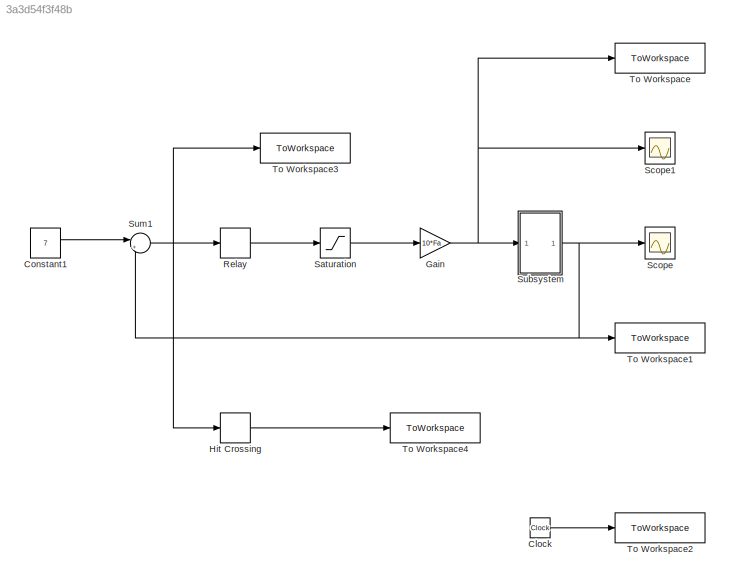
MODEL slx_3a3d54f3f48b
KIND model
CONFIG AbsTol = auto
CONFIG EnableMultiTasking = off
CONFIG FixedStep = 0.01
CONFIG MaxStep = auto
CONFIG MinStep = auto
CONFIG RelTol = 1e-3
CONFIG SampleTimeConstraint = Unconstrained
CONFIG Solver = ode4
CONFIG SolverName = ode4
CONFIG StartTime = 0.0
CONFIG StopTime = 10.0
BLOCK [Clock] Clock
BLOCK [Constant] Constant1
  Value = 7
BLOCK [Gain] Gain
  Gain = 10*Fa
BLOCK [HitCross] Hit Crossing
  HitCrossingDirection = rising
  Ports = [1, 1]
BLOCK [Relay] Relay
  OffSwitchValue = -eps
  OnOutputValue = M
BLOCK [Saturate] Saturation
  LowerLimit = 0
  UpperLimit = 1
BLOCK [Scope] Scope
  Floating = off
  NumInputPorts = 1
  Ports = [1]
  ScopeSpecificationString = Simulink.scopes.TimeScopeBlockCfg('CurrentConfiguration', extmgr.ConfigurationSet(extmgr.Configuration('Core','General UI',true),extmgr.Configuration('Core','Source UI',true),extmgr.Configuration('Sources','WiredSimulink',true),extmgr.Configuration('Visuals','Time Domain',true,'SerializedDisplays',{struct('MinYLimReal','6.999988','MaxYLimReal','7.000000','YLabelReal','','MinYLimMag','6.999988','Ma...<+1391ch>
BLOCK [Scope] Scope1
  Floating = off
  NumInputPorts = 1
  Ports = [1]
  ScopeSpecificationString = Simulink.scopes.TimeScopeBlockCfg('CurrentConfiguration', extmgr.ConfigurationSet(extmgr.Configuration('Core','General UI',true),extmgr.Configuration('Core','Source UI',true),extmgr.Configuration('Sources','WiredSimulink',true,'DataLoggingVariableName','ScopeData1'),extmgr.Configuration('Visuals','Time Domain',true,'SerializedDisplays',{struct('MinYLimReal','-0.00295','MaxYLimReal','0.1653','YLabe...<+1378ch>
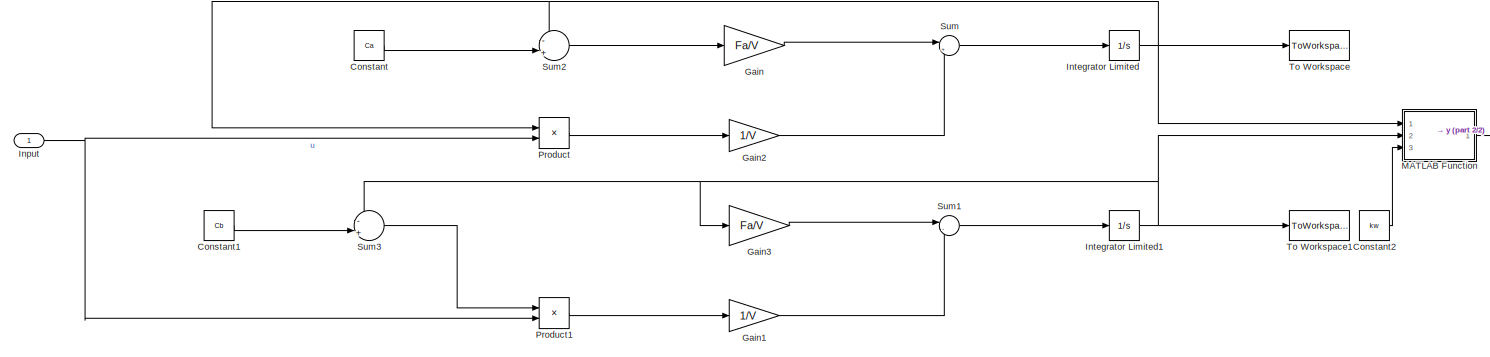
[diagram: Subsystem - part 1/2, most of the canvas]
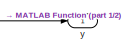
[diagram: Subsystem - part 2/2, middle right region]
BLOCK [SubSystem] Subsystem
  Ports = [1, 1]
  RequestExecContextInheritance = off
BLOCK [Constant] Subsystem/Constant
  Value = Ca
BLOCK [Constant] Subsystem/Constant1
  Value = Cb
BLOCK [Constant] Subsystem/Constant2
  Value = kw
BLOCK [Gain] Subsystem/Gain
  Gain = Fa/V
BLOCK [Gain] Subsystem/Gain1
  Gain = 1/V
BLOCK [Gain] Subsystem/Gain2
  Gain = 1/V
BLOCK [Gain] Subsystem/Gain3
  Gain = Fa/V
BLOCK [Inport] Subsystem/Input
  IconDisplay = Signal name
BLOCK [Integrator] Subsystem/Integrator Limited
  LimitOutput = on
  LowerSaturationLimit = 0
  Ports = [1, 1]
  UpperSaturationLimit = Ca
BLOCK [Integrator] Subsystem/Integrator Limited1
  LimitOutput = on
  LowerSaturationLimit = 0
  Ports = [1, 1]
  UpperSaturationLimit = Cb
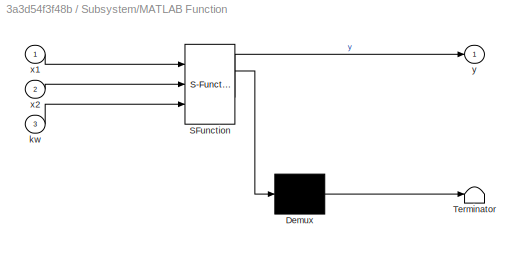
BLOCK [SubSystem] Subsystem/MATLAB Function
  ErrorFcn = Stateflow.Translate.translate
  PermitHierarchicalResolution = ExplicitOnly
  Ports = [3, 1]
  RequestExecContextInheritance = off
  SFBlockType = MATLAB Function
  TreatAsAtomicUnit = on
BLOCK [Demux] Subsystem/MATLAB Function/ Demux 
  Outputs = 1
  Ports = [1, 1]
BLOCK [S-Function] Subsystem/MATLAB Function/ SFunction 
  EnableBusSupport = on
  FunctionName = sf_sfun
  PortCounts = [3 2]
  Ports = [3, 2]
  SFcnIsStateOwnerBlock = off
  SFunctionDeploymentMode = off
  Tag = Stateflow S-Function relejni_eksperiment 2
BLOCK [Terminator] Subsystem/MATLAB Function/ Terminator 
BLOCK [Inport] Subsystem/MATLAB Function/kw
  Port = 3
BLOCK [Inport] Subsystem/MATLAB Function/x1
BLOCK [Inport] Subsystem/MATLAB Function/x2
  Port = 2
BLOCK [Outport] Subsystem/MATLAB Function/y
BLOCK [Product] Subsystem/Product
  Ports = [2, 1]
BLOCK [Product] Subsystem/Product1
  Ports = [2, 1]
BLOCK [Sum] Subsystem/Sum
  Inputs = |+-
  Ports = [2, 1]
BLOCK [Sum] Subsystem/Sum1
  Inputs = |-+
  Ports = [2, 1]
BLOCK [Sum] Subsystem/Sum2
  Inputs = -|+||
  Ports = [2, 1]
BLOCK [Sum] Subsystem/Sum3
  Inputs = -|+||
  Ports = [2, 1]
BLOCK [ToWorkspace] Subsystem/To Workspace
  FixptAsFi = on
  MaxDataPoints = inf
  Ports = [1]
  SampleTime = -1
  VariableName = x1
BLOCK [ToWorkspace] Subsystem/To Workspace1
  FixptAsFi = on
  MaxDataPoints = inf
  Ports = [1]
  SampleTime = -1
  VariableName = x2
BLOCK [Outport] Subsystem/y
BLOCK [Sum] Sum1
  Inputs = |+-
  Ports = [2, 1]
BLOCK [ToWorkspace] To Workspace
  FixptAsFi = on
  MaxDataPoints = inf
  Ports = [1]
  SampleTime = -1
  VariableName = u
BLOCK [ToWorkspace] To Workspace1
  FixptAsFi = on
  MaxDataPoints = inf
  Ports = [1]
  SampleTime = -1
  VariableName = y
BLOCK [ToWorkspace] To Workspace2
  FixptAsFi = on
  MaxDataPoints = inf
  Ports = [1]
  SampleTime = -1
  VariableName = t
BLOCK [ToWorkspace] To Workspace3
  FixptAsFi = on
  MaxDataPoints = inf
  Ports = [1]
  SampleTime = -1
  VariableName = e
BLOCK [ToWorkspace] To Workspace4
  FixptAsFi = on
  MaxDataPoints = inf
  Ports = [1]
  SampleTime = -1
  VariableName = zc
LINE Clock:1 -> To Workspace2:1
LINE Constant1:1 -> Sum1:1
NET Gain:1 -> Scope1:1, Subsystem:1, To Workspace:1
LINE Hit Crossing:1 -> To Workspace4:1
LINE Relay:1 -> Saturation:1
LINE Saturation:1 -> Gain:1
LINE Subsystem/Constant1:1 -> Subsystem/Sum3:2
LINE Subsystem/Constant2:1 -> Subsystem/MATLAB Function:3
LINE Subsystem/Constant:1 -> Subsystem/Sum2:2
LINE Subsystem/Gain1:1 -> Subsystem/Sum1:2
LINE Subsystem/Gain2:1 -> Subsystem/Sum:2
LINE Subsystem/Gain3:1 -> Subsystem/Sum1:1
LINE Subsystem/Gain:1 -> Subsystem/Sum:1
NET Subsystem/Input:1 -> Subsystem/Product1:2, Subsystem/Product:2
NET Subsystem/Integrator Limited1:1 -> Subsystem/Gain3:1, Subsystem/MATLAB Function:2, Subsystem/Sum3:1, Subsystem/To Workspace1:1
NET Subsystem/Integrator Limited:1 -> Subsystem/MATLAB Function:1, Subsystem/Product:1, Subsystem/Sum2:1, Subsystem/To Workspace:1
LINE Subsystem/MATLAB Function:1 -> Subsystem/y:1
LINE Subsystem/Product1:1 -> Subsystem/Gain1:1
LINE Subsystem/Product:1 -> Subsystem/Gain2:1
LINE Subsystem/Sum1:1 -> Subsystem/Integrator Limited1:1
LINE Subsystem/Sum2:1 -> Subsystem/Gain:1
LINE Subsystem/Sum3:1 -> Subsystem/Product1:1
LINE Subsystem/Sum:1 -> Subsystem/Integrator Limited:1
NET Subsystem:1 -> Scope:1, Sum1:2, To Workspace1:1
NET Sum1:1 -> Hit Crossing:1, Relay:1, To Workspace3:1
note: NET lines group one-source signal fan-out (src -> all destinations, sorted); 1:1 wires keep LINE
CHART Subsystem/MATLAB Function states=1 transitions=1
  STATE_LABEL 'eML_blk_kernel()'
  STATE_LABEL 'SCRIPT:\nfunction y = fcn(x1, x2, kw)\n\ny = -log10(sqrt((x2-x1)^2 / 4 + kw) - (x2 - x1) / 2);\n'
